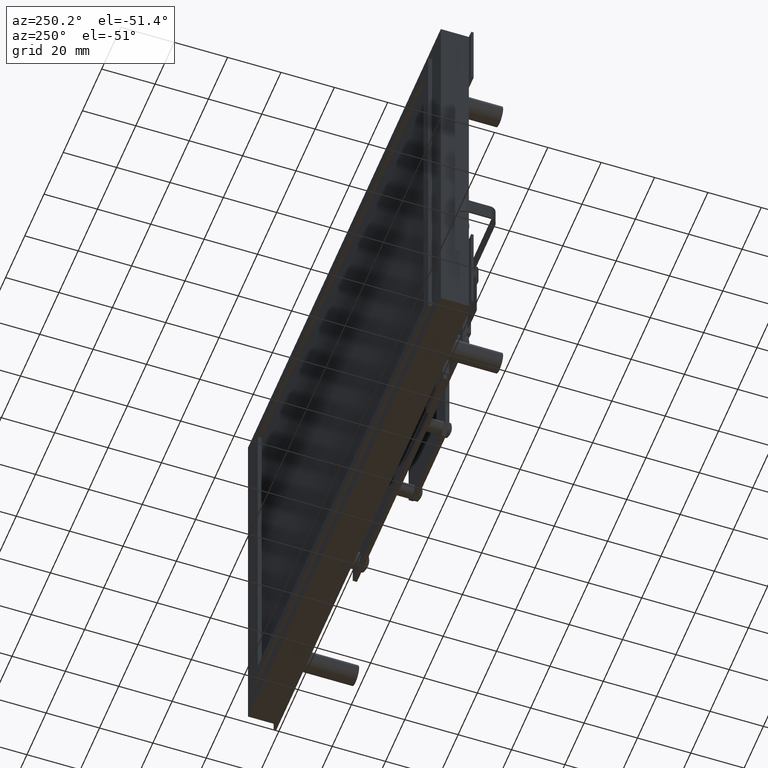
[diagram: clean part render]
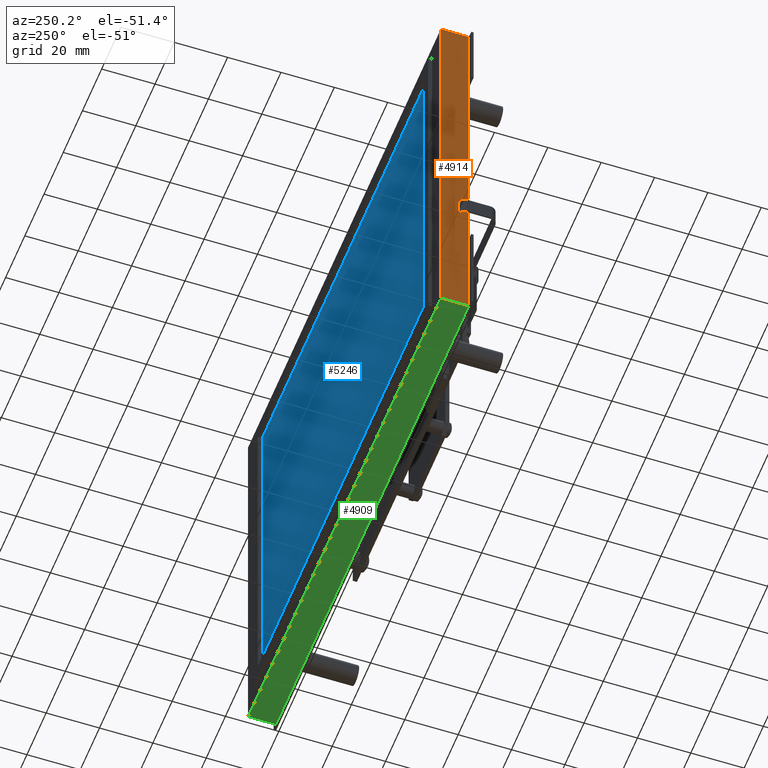
[diagram: same view with three faces highlighted in distinct colors, each labeled with its STEP entity id]
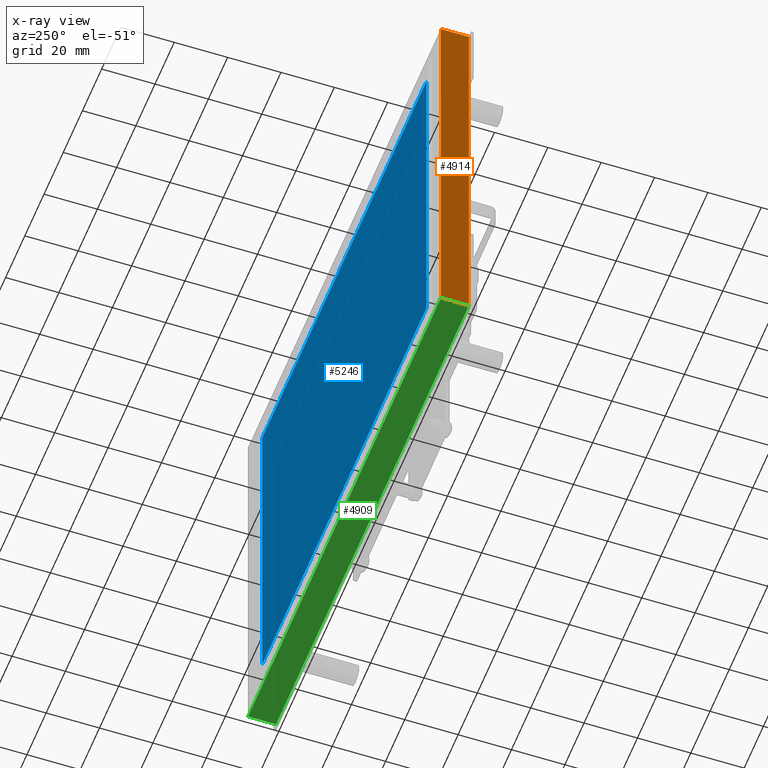
[diagram: x-ray of the same camera — body ghosted, the three highlighted faces saturated]
A machine part, auxiliary view with three faces highlighted in distinct colors.
The next image is the same camera in x-ray (body ghosted, the three faces saturated) — at least one of them is partly hidden behind the body in this view.
Their STEP definitions:

[orange] entity #4914 — the highlighted planar face has unit normal (1, 0, 0).
#700 = CARTESIAN_POINT ( 'NONE',  ( -3.951000000000000100, 0.0000000000000000000, 2.995000000000000100 ) ) ;
#706 = DIRECTION ( 'NONE',  ( 9.128982434968297100E-017, 0.0000000000000000000, -1.000000000000000000 ) ) ;
#2552 = LINE ( 'NONE', #4027, #2555 ) ;
#2554 = LINE ( 'NONE', #4029, #2557 ) ;
#2555 = VECTOR ( 'NONE', #4028, 39.37007874015748100 ) ;
#2557 = VECTOR ( 'NONE', #4030, 39.37007874015748100 ) ;
#2562 = LINE ( 'NONE', #4036, #2565 ) ;
#2565 = VECTOR ( 'NONE', #4037, 39.37007874015748100 ) ;
#4027 = CARTESIAN_POINT ( 'NONE',  ( -3.950999999999999600, -0.4130000000000000300, -2.990000000000000700 ) ) ;
#4028 = DIRECTION ( 'NONE',  ( -0.0000000000000000000, 1.000000000000000000, -0.0000000000000000000 ) ) ;
#4029 = CARTESIAN_POINT ( 'NONE',  ( -3.951000000000000100, -0.4130000000000000300, 2.995000000000000100 ) ) ;
#4030 = DIRECTION ( 'NONE',  ( -0.0000000000000000000, 1.000000000000000000, -0.0000000000000000000 ) ) ;
#4036 = CARTESIAN_POINT ( 'NONE',  ( -3.951000000000000100, -0.4130000000000000300, 2.995000000000000100 ) ) ;
#4037 = DIRECTION ( 'NONE',  ( 9.128982434968297100E-017, 0.0000000000000000000, -1.000000000000000000 ) ) ;
#4914 = ADVANCED_FACE ( 'NONE', ( #7986 ), #14789, .F. ) ;
#5529 = VERTEX_POINT ( 'NONE', #20305 ) ;
#5701 = VERTEX_POINT ( 'NONE', #20328 ) ;
#5753 = VERTEX_POINT ( 'NONE', #20342 ) ;
#5788 = VERTEX_POINT ( 'NONE', #20343 ) ;
#6108 = EDGE_CURVE ( 'NONE', #5529, #5788, #9853, .T. ) ;
#7986 = FACE_OUTER_BOUND ( 'NONE', #13331, .T. ) ;
#8205 = AXIS2_PLACEMENT_3D ( 'NONE', #14782, #14791, #14792 ) ;
#9853 = LINE ( 'NONE', #700, #9858 ) ;
#9858 = VECTOR ( 'NONE', #706, 39.37007874015748100 ) ;
#13251 = ORIENTED_EDGE ( 'NONE', *, *, #6108, .T. ) ;
#13273 = ORIENTED_EDGE ( 'NONE', *, *, #13668, .F. ) ;
#13279 = ORIENTED_EDGE ( 'NONE', *, *, #13663, .F. ) ;
#13284 = ORIENTED_EDGE ( 'NONE', *, *, #13664, .T. ) ;
#13331 = EDGE_LOOP ( 'NONE', ( #13251, #13279, #13273, #13284 ) ) ;
#13663 = EDGE_CURVE ( 'NONE', #5753, #5788, #2552, .T. ) ;
#13664 = EDGE_CURVE ( 'NONE', #5701, #5529, #2554, .T. ) ;
#13668 = EDGE_CURVE ( 'NONE', #5701, #5753, #2562, .T. ) ;
#14782 = CARTESIAN_POINT ( 'NONE',  ( -3.951000000000000100, -0.4130000000000000300, 2.995000000000000100 ) ) ;
#14789 = PLANE ( 'NONE',  #8205 ) ;
#14791 = DIRECTION ( 'NONE',  ( 1.000000000000000000, 0.0000000000000000000, 9.128982434968297100E-017 ) ) ;
#14792 = DIRECTION ( 'NONE',  ( 9.128982434968297100E-017, 0.0000000000000000000, -1.000000000000000000 ) ) ;
#20305 = CARTESIAN_POINT ( 'NONE',  ( -3.951000000000000100, 0.0000000000000000000, 2.995000000000000100 ) ) ;
#20328 = CARTESIAN_POINT ( 'NONE',  ( -3.951000000000000100, -0.4130000000000000300, 2.995000000000000100 ) ) ;
#20342 = CARTESIAN_POINT ( 'NONE',  ( -3.950999999999999600, -0.4130000000000000300, -2.990000000000000700 ) ) ;
#20343 = CARTESIAN_POINT ( 'NONE',  ( -3.950999999999999600, 0.0000000000000000000, -2.990000000000000700 ) ) ;

[blue] entity #5246 — the highlighted planar face has unit normal (0, 1, 0).
#2513 = LINE ( 'NONE', #3696, #2521 ) ;
#2521 = VECTOR ( 'NONE', #3701, 39.37007874015748100 ) ;
#2524 = LINE ( 'NONE', #3706, #2527 ) ;
#2526 = LINE ( 'NONE', #3708, #2529 ) ;
#2527 = VECTOR ( 'NONE', #3707, 39.37007874015748100 ) ;
#2529 = VECTOR ( 'NONE', #3709, 39.37007874015748100 ) ;
#2534 = LINE ( 'NONE', #3716, #2537 ) ;
#2537 = VECTOR ( 'NONE', #3718, 39.37007874015748100 ) ;
#3696 = CARTESIAN_POINT ( 'NONE',  ( -3.362499999999999400, 0.0001000000000000207900, 2.522499999999999100 ) ) ;
#3701 = DIRECTION ( 'NONE',  ( 1.000000000000000000, 0.0000000000000000000, 0.0000000000000000000 ) ) ;
#3706 = CARTESIAN_POINT ( 'NONE',  ( -3.362499999999999400, 0.0001000000000000207900, -2.522500000000000900 ) ) ;
#3707 = DIRECTION ( 'NONE',  ( -1.000000000000000000, -0.0000000000000000000, -0.0000000000000000000 ) ) ;
#3708 = CARTESIAN_POINT ( 'NONE',  ( 3.362499999999999800, 0.0001000000000000207900, -2.522500000000000900 ) ) ;
#3709 = DIRECTION ( 'NONE',  ( -1.082992267062145900E-016, -0.0000000000000000000, -1.000000000000000000 ) ) ;
#3716 = CARTESIAN_POINT ( 'NONE',  ( -3.362499999999999400, 0.0001000000000000207900, -2.522500000000000900 ) ) ;
#3718 = DIRECTION ( 'NONE',  ( 0.0000000000000000000, 0.0000000000000000000, 1.000000000000000000 ) ) ;
#5246 = ADVANCED_FACE ( 'NONE', ( #9212 ), #17274, .T. ) ;
#5541 = VERTEX_POINT ( 'NONE', #20313 ) ;
#5684 = VERTEX_POINT ( 'NONE', #20324 ) ;
#5705 = VERTEX_POINT ( 'NONE', #20322 ) ;
#5741 = VERTEX_POINT ( 'NONE', #20341 ) ;
#7244 = ORIENTED_EDGE ( 'NONE', *, *, #8128, .T. ) ;
#7257 = ORIENTED_EDGE ( 'NONE', *, *, #8125, .T. ) ;
#7258 = ORIENTED_EDGE ( 'NONE', *, *, #8133, .T. ) ;
#7259 = ORIENTED_EDGE ( 'NONE', *, *, #8129, .T. ) ;
#8125 = EDGE_CURVE ( 'NONE', #5705, #5684, #2513, .T. ) ;
#8128 = EDGE_CURVE ( 'NONE', #5541, #5741, #2524, .T. ) ;
#8129 = EDGE_CURVE ( 'NONE', #5684, #5541, #2526, .T. ) ;
#8133 = EDGE_CURVE ( 'NONE', #5741, #5705, #2534, .T. ) ;
#9212 = FACE_OUTER_BOUND ( 'NONE', #13426, .T. ) ;
#11214 = AXIS2_PLACEMENT_3D ( 'NONE', #17267, #17276, #17277 ) ;
#13426 = EDGE_LOOP ( 'NONE', ( #7259, #7244, #7258, #7257 ) ) ;
#17267 = CARTESIAN_POINT ( 'NONE',  ( 0.0000000000000000000, 0.0001000000000000207900, 0.0000000000000000000 ) ) ;
#17274 = PLANE ( 'NONE',  #11214 ) ;
#17276 = DIRECTION ( 'NONE',  ( 0.0000000000000000000, 1.000000000000000000, 0.0000000000000000000 ) ) ;
#17277 = DIRECTION ( 'NONE',  ( 0.0000000000000000000, -0.0000000000000000000, 1.000000000000000000 ) ) ;
#20313 = CARTESIAN_POINT ( 'NONE',  ( 3.362499999999999800, 0.0001000000000000207900, -2.522500000000000900 ) ) ;
#20322 = CARTESIAN_POINT ( 'NONE',  ( -3.362499999999999400, 0.0001000000000000207900, 2.522499999999999100 ) ) ;
#20324 = CARTESIAN_POINT ( 'NONE',  ( 3.362500000000000700, 0.0001000000000000207900, 2.522499999999999100 ) ) ;
#20341 = CARTESIAN_POINT ( 'NONE',  ( -3.362499999999999400, 0.0001000000000000207900, -2.522500000000000900 ) ) ;

[green] entity #4909 — the highlighted planar face has unit normal (0, 0, 1).
#676 = CARTESIAN_POINT ( 'NONE',  ( -3.950999999999999600, 0.0000000000000000000, -2.990000000000000700 ) ) ;
#702 = DIRECTION ( 'NONE',  ( 1.000000000000000000, 0.0000000000000000000, 0.0000000000000000000 ) ) ;
#2550 = LINE ( 'NONE', #4022, #2561 ) ;
#2552 = LINE ( 'NONE', #4027, #2555 ) ;
#2555 = VECTOR ( 'NONE', #4028, 39.37007874015748100 ) ;
#2561 = VECTOR ( 'NONE', #4033, 39.37007874015748100 ) ;
#2572 = LINE ( 'NONE', #4046, #2575 ) ;
#2575 = VECTOR ( 'NONE', #4047, 39.37007874015748100 ) ;
#4022 = CARTESIAN_POINT ( 'NONE',  ( 3.950999999999999600, -0.4130000000000000300, -2.990000000000000700 ) ) ;
#4027 = CARTESIAN_POINT ( 'NONE',  ( -3.950999999999999600, -0.4130000000000000300, -2.990000000000000700 ) ) ;
#4028 = DIRECTION ( 'NONE',  ( -0.0000000000000000000, 1.000000000000000000, -0.0000000000000000000 ) ) ;
#4033 = DIRECTION ( 'NONE',  ( -0.0000000000000000000, 1.000000000000000000, -0.0000000000000000000 ) ) ;
#4046 = CARTESIAN_POINT ( 'NONE',  ( -3.950999999999999600, -0.4130000000000000300, -2.990000000000000700 ) ) ;
#4047 = DIRECTION ( 'NONE',  ( 1.000000000000000000, 0.0000000000000000000, 0.0000000000000000000 ) ) ;
#4909 = ADVANCED_FACE ( 'NONE', ( #7980 ), #14769, .F. ) ;
#5696 = VERTEX_POINT ( 'NONE', #20321 ) ;
#5735 = VERTEX_POINT ( 'NONE', #20323 ) ;
#5753 = VERTEX_POINT ( 'NONE', #20342 ) ;
#5788 = VERTEX_POINT ( 'NONE', #20343 ) ;
#6106 = EDGE_CURVE ( 'NONE', #5788, #5735, #9845, .T. ) ;
#7980 = FACE_OUTER_BOUND ( 'NONE', #13413, .T. ) ;
#8200 = AXIS2_PLACEMENT_3D ( 'NONE', #14766, #14771, #14772 ) ;
#9845 = LINE ( 'NONE', #676, #9854 ) ;
#9854 = VECTOR ( 'NONE', #702, 39.37007874015748100 ) ;
#13253 = ORIENTED_EDGE ( 'NONE', *, *, #13663, .T. ) ;
#13269 = ORIENTED_EDGE ( 'NONE', *, *, #13673, .F. ) ;
#13275 = ORIENTED_EDGE ( 'NONE', *, *, #6106, .T. ) ;
#13276 = ORIENTED_EDGE ( 'NONE', *, *, #13666, .F. ) ;
#13413 = EDGE_LOOP ( 'NONE', ( #13275, #13276, #13269, #13253 ) ) ;
#13663 = EDGE_CURVE ( 'NONE', #5753, #5788, #2552, .T. ) ;
#13666 = EDGE_CURVE ( 'NONE', #5696, #5735, #2550, .T. ) ;
#13673 = EDGE_CURVE ( 'NONE', #5753, #5696, #2572, .T. ) ;
#14766 = CARTESIAN_POINT ( 'NONE',  ( -3.950999999999999600, -0.4130000000000000300, -2.990000000000000700 ) ) ;
#14769 = PLANE ( 'NONE',  #8200 ) ;
#14771 = DIRECTION ( 'NONE',  ( -0.0000000000000000000, 0.0000000000000000000, 1.000000000000000000 ) ) ;
#14772 = DIRECTION ( 'NONE',  ( 1.000000000000000000, 0.0000000000000000000, 0.0000000000000000000 ) ) ;
#20321 = CARTESIAN_POINT ( 'NONE',  ( 3.950999999999999600, -0.4130000000000000300, -2.990000000000000700 ) ) ;
#20323 = CARTESIAN_POINT ( 'NONE',  ( 3.950999999999999600, 0.0000000000000000000, -2.990000000000000700 ) ) ;
#20342 = CARTESIAN_POINT ( 'NONE',  ( -3.950999999999999600, -0.4130000000000000300, -2.990000000000000700 ) ) ;
#20343 = CARTESIAN_POINT ( 'NONE',  ( -3.950999999999999600, 0.0000000000000000000, -2.990000000000000700 ) ) ;